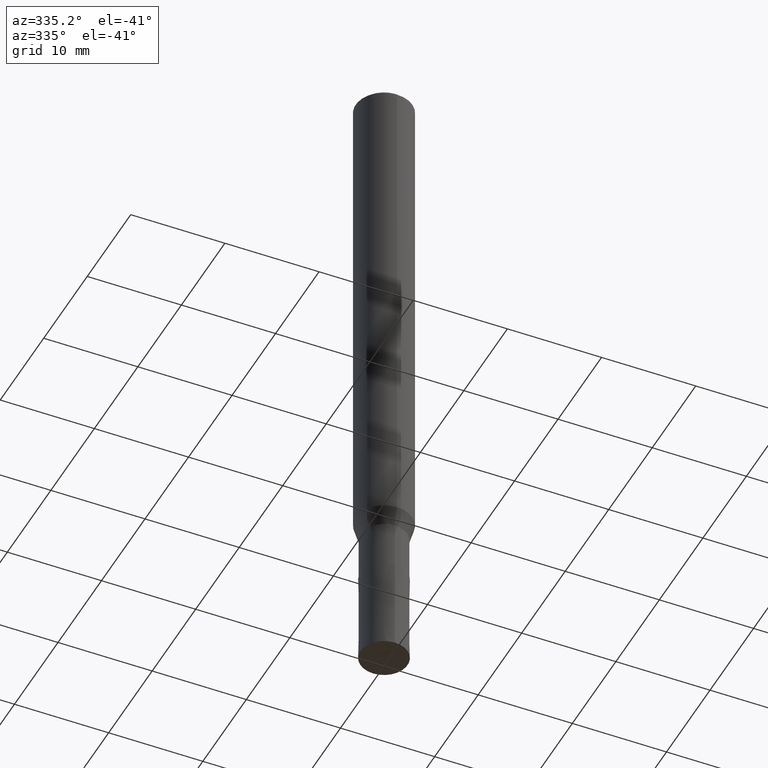
[diagram: clean part render]
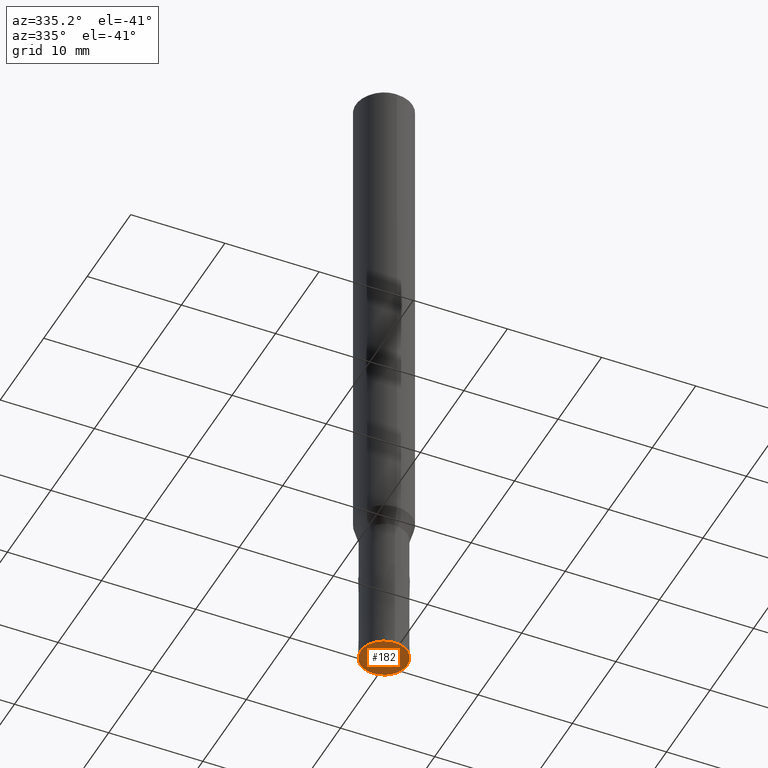
[diagram: same view with one face highlighted and labeled with its STEP entity id]
A machine part, auxiliary view. The second image highlights one B-rep face of the part: STEP entity #182.
In plain terms, the highlighted planar face has unit normal (0, 0, -1).
Its self-contained STEP definition (entity closure, byte-faithful):
#92=EDGE_CURVE('',#134,#146,#229,.T.);
#134=VERTEX_POINT('',#277);
#146=VERTEX_POINT('',#291);
#182=ADVANCED_FACE('',(#332),#333,.T.);
#184=EDGE_CURVE('',#146,#134,#335,.T.);
#229=CIRCLE('',#375,2.5);
#277=CARTESIAN_POINT('',(0.0,2.5,-70.0));
#291=CARTESIAN_POINT('',(3.06151588455594E-016,-2.5,-70.0));
#332=FACE_OUTER_BOUND('',#500,.T.);
#333=PLANE('',#501);
#335=CIRCLE('',#504,2.5);
#375=AXIS2_PLACEMENT_3D('',#542,#543,#544);
#500=EDGE_LOOP('',(#673,#674));
#501=AXIS2_PLACEMENT_3D('',#675,#676,#677);
#504=AXIS2_PLACEMENT_3D('',#678,#679,#680);
#542=CARTESIAN_POINT('',(0.0,0.0,-70.0));
#543=DIRECTION('',(0.0,0.0,-1.0));
#544=DIRECTION('',(0.0,1.0,0.0));
#673=ORIENTED_EDGE('',*,*,#92,.T.);
#674=ORIENTED_EDGE('',*,*,#184,.T.);
#675=CARTESIAN_POINT('',(0.0,1.2475,-70.0));
#676=DIRECTION('',(0.0,0.0,-1.0));
#677=DIRECTION('',(0.0,1.0,0.0));
#678=CARTESIAN_POINT('',(0.0,0.0,-70.0));
#679=DIRECTION('',(0.0,0.0,-1.0));
#680=DIRECTION('',(0.0,1.0,0.0));